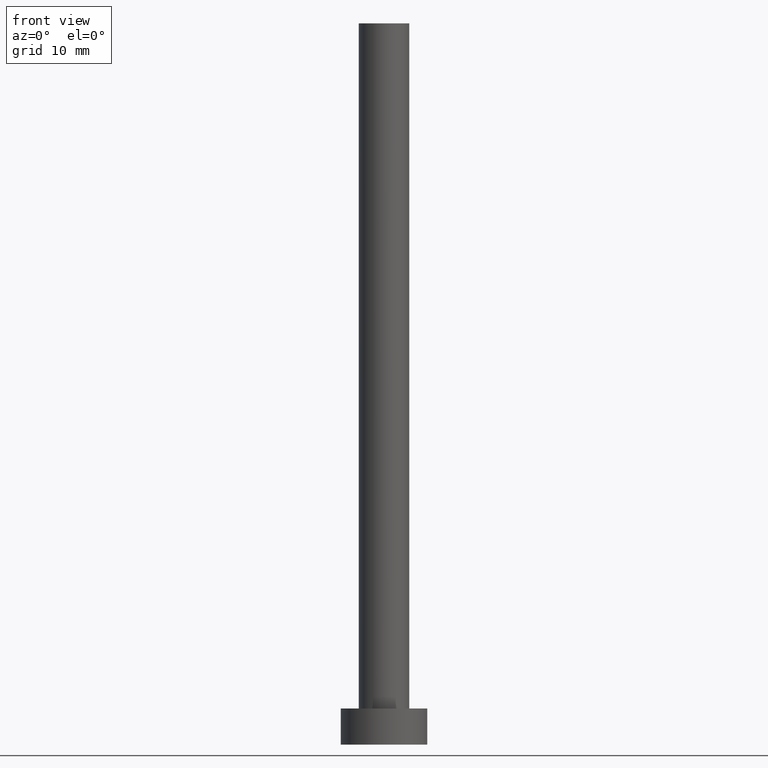
[diagram: clean part render]
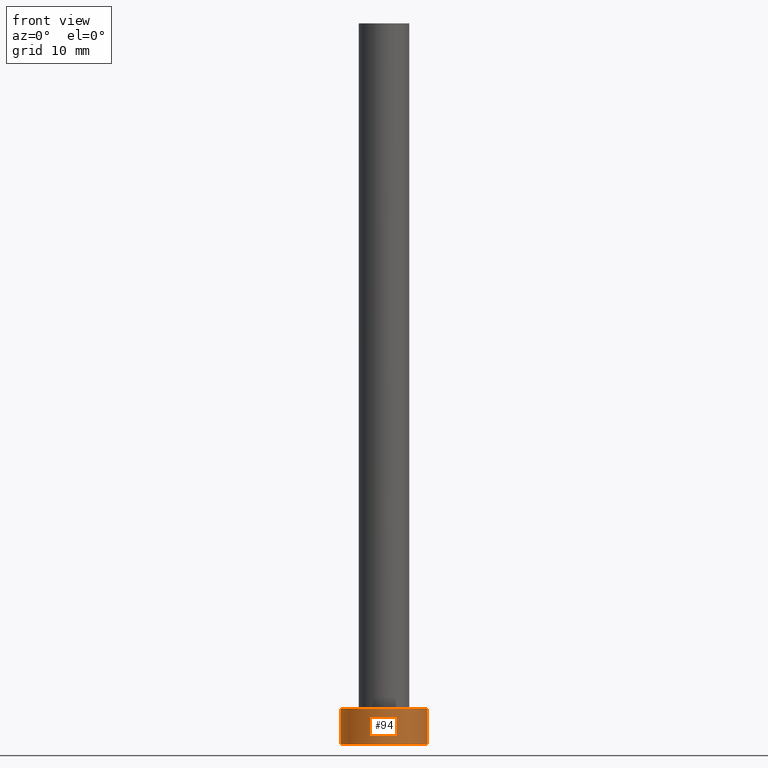
[diagram: same view with one face highlighted and labeled with its STEP entity id]
A machine part, front view. The second image highlights one B-rep face of the part: STEP entity #94.
In plain terms, the highlighted cylindrical surface (partial cylindrical patch) has radius 6 mm, axis along (-0, -0, -1).
Its self-contained STEP definition (entity closure, byte-faithful):
#14 = AXIS2_PLACEMENT_3D ( 'NONE', #169, #185, #67 ) ;
#18 = VERTEX_POINT ( 'NONE', #170 ) ;
#22 = ORIENTED_EDGE ( 'NONE', *, *, #234, .T. ) ;
#29 = EDGE_LOOP ( 'NONE', ( #51, #111, #173, #22 ) ) ;
#31 = EDGE_CURVE ( 'NONE', #18, #154, #45, .T. ) ;
#45 = CIRCLE ( 'NONE', #188, 6.000000000000000888 ) ;
#46 = CYLINDRICAL_SURFACE ( 'NONE', #14, 6.000000000000000888 ) ;
#51 = ORIENTED_EDGE ( 'NONE', *, *, #220, .F. ) ;
#52 = CARTESIAN_POINT ( 'NONE',  ( 6.000000000000000888, 7.347880794884120722E-16, 5.000000000000000000 ) ) ;
#57 = CARTESIAN_POINT ( 'NONE',  ( 6.000000000000000888, 7.347880794884120722E-16, 5.000000000000000000 ) ) ;
#66 = VERTEX_POINT ( 'NONE', #108 ) ;
#67 = DIRECTION ( 'NONE',  ( -1.000000000000000000, 0.000000000000000000, 0.000000000000000000 ) ) ;
#70 = CARTESIAN_POINT ( 'NONE',  ( 6.000000000000000888, 7.347880794884120722E-16, 0.000000000000000000 ) ) ;
#84 = AXIS2_PLACEMENT_3D ( 'NONE', #97, #134, #210 ) ;
#87 = DIRECTION ( 'NONE',  ( 1.000000000000000000, 0.000000000000000000, 0.000000000000000000 ) ) ;
#94 = ADVANCED_FACE ( 'NONE', ( #158 ), #46, .T. ) ;
#97 = CARTESIAN_POINT ( 'NONE',  ( 0.000000000000000000, 0.000000000000000000, 0.000000000000000000 ) ) ;
#108 = CARTESIAN_POINT ( 'NONE',  ( -6.000000000000000888, 0.000000000000000000, 0.000000000000000000 ) ) ;
#111 = ORIENTED_EDGE ( 'NONE', *, *, #31, .F. ) ;
#130 = VERTEX_POINT ( 'NONE', #70 ) ;
#134 = DIRECTION ( 'NONE',  ( 0.000000000000000000, 0.000000000000000000, 1.000000000000000000 ) ) ;
#154 = VERTEX_POINT ( 'NONE', #57 ) ;
#158 = FACE_OUTER_BOUND ( 'NONE', #29, .T. ) ;
#164 = VECTOR ( 'NONE', #248, 1000.000000000000000 ) ;
#169 = CARTESIAN_POINT ( 'NONE',  ( 0.000000000000000000, 0.000000000000000000, 5.000000000000000000 ) ) ;
#170 = CARTESIAN_POINT ( 'NONE',  ( -6.000000000000000888, 0.000000000000000000, 5.000000000000000000 ) ) ;
#173 = ORIENTED_EDGE ( 'NONE', *, *, #196, .T. ) ;
#185 = DIRECTION ( 'NONE',  ( -0.000000000000000000, -0.000000000000000000, -1.000000000000000000 ) ) ;
#188 = AXIS2_PLACEMENT_3D ( 'NONE', #245, #206, #87 ) ;
#192 = CARTESIAN_POINT ( 'NONE',  ( -6.000000000000000888, 0.000000000000000000, 5.000000000000000000 ) ) ;
#194 = LINE ( 'NONE', #192, #252 ) ;
#196 = EDGE_CURVE ( 'NONE', #18, #66, #194, .T. ) ;
#206 = DIRECTION ( 'NONE',  ( 0.000000000000000000, 0.000000000000000000, 1.000000000000000000 ) ) ;
#210 = DIRECTION ( 'NONE',  ( 1.000000000000000000, 0.000000000000000000, 0.000000000000000000 ) ) ;
#220 = EDGE_CURVE ( 'NONE', #154, #130, #233, .T. ) ;
#233 = LINE ( 'NONE', #52, #164 ) ;
#234 = EDGE_CURVE ( 'NONE', #66, #130, #249, .T. ) ;
#245 = CARTESIAN_POINT ( 'NONE',  ( 0.000000000000000000, 0.000000000000000000, 5.000000000000000000 ) ) ;
#248 = DIRECTION ( 'NONE',  ( -0.000000000000000000, -0.000000000000000000, -1.000000000000000000 ) ) ;
#249 = CIRCLE ( 'NONE', #84, 6.000000000000000888 ) ;
#250 = DIRECTION ( 'NONE',  ( -0.000000000000000000, -0.000000000000000000, -1.000000000000000000 ) ) ;
#252 = VECTOR ( 'NONE', #250, 1000.000000000000000 ) ;